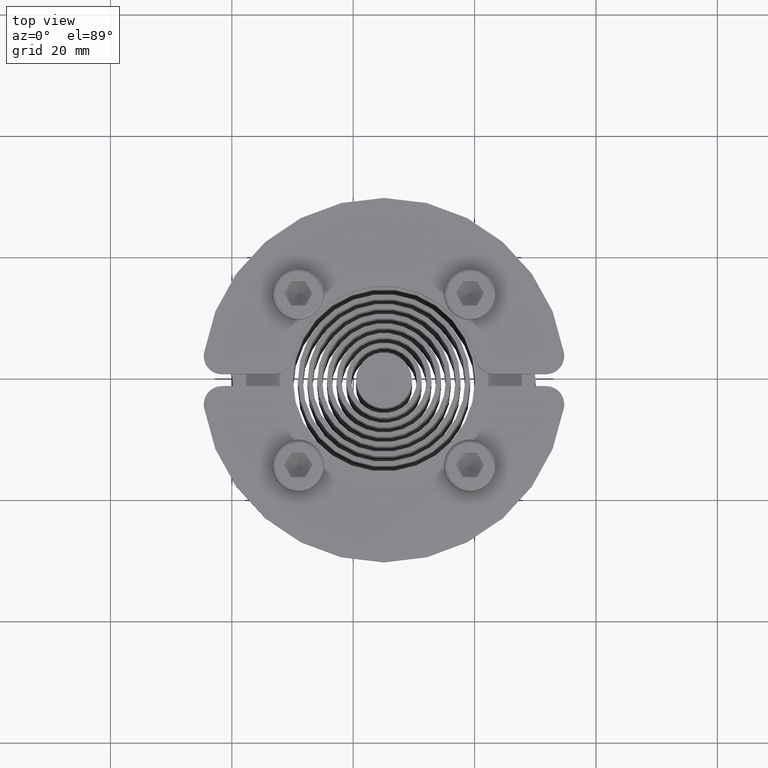
[diagram: clean part render]
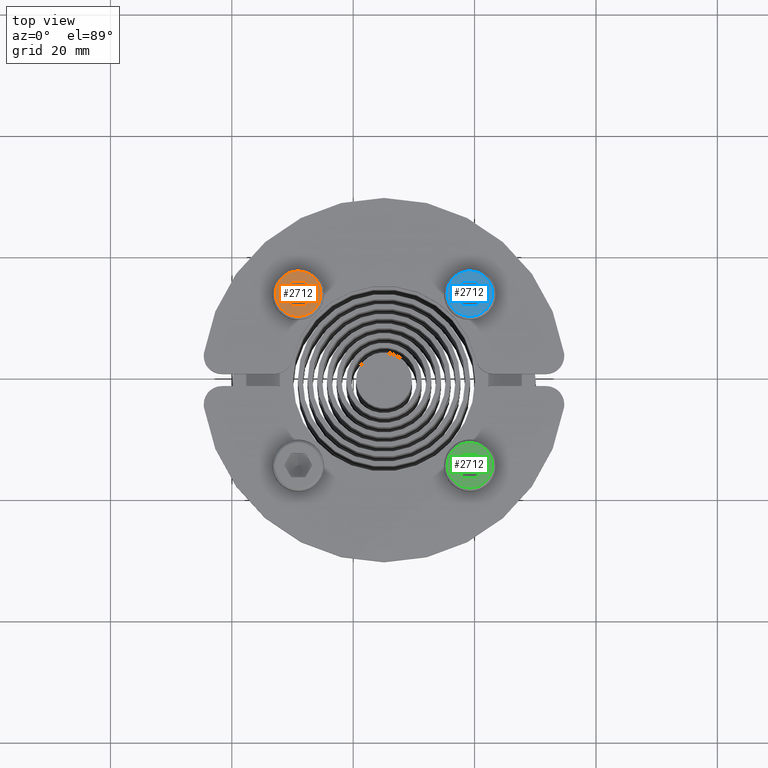
[diagram: same view with three faces highlighted in distinct colors, each labeled with its STEP entity id]
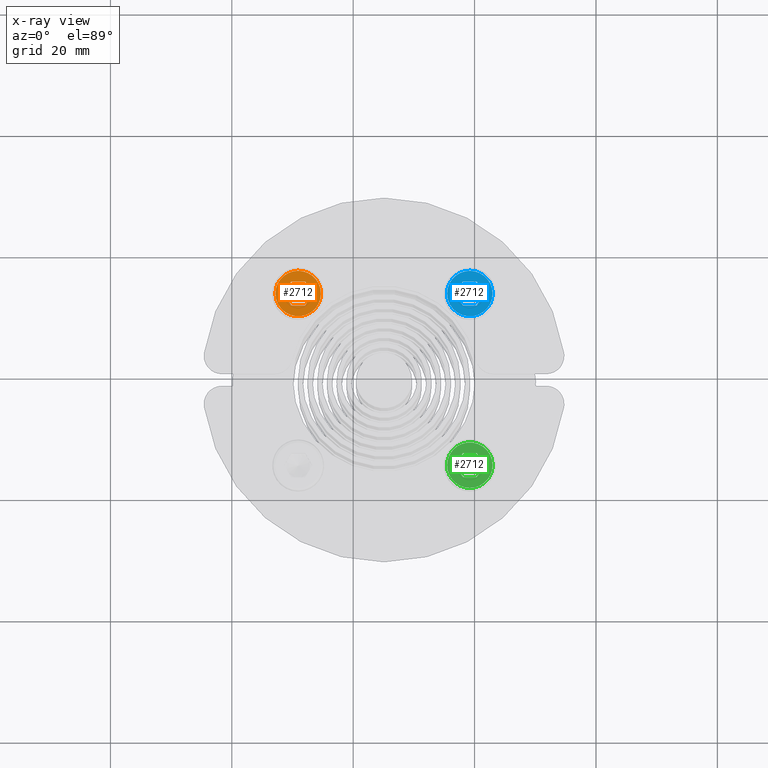
[diagram: x-ray of the same camera — body ghosted, the three highlighted faces saturated]
A machine part, top view with three faces highlighted in distinct colors.
The next image is the same camera in x-ray (body ghosted, the three faces saturated) — at least one of them is partly hidden behind the body in this view.
Their STEP definitions:

[orange] entity #2712 — the highlighted planar face has unit normal (-0, 0, 1).
#2288=CARTESIAN_POINT('',(-5.0,1.814889E-016,-3.750000000000313));
#2289=VERTEX_POINT('',#2288);
#2307=CARTESIAN_POINT('',(-5.0,-7.369658E-016,3.750000000000313));
#2308=VERTEX_POINT('',#2307);
#2316=CARTESIAN_POINT('',(-5.0,0.0,0.0));
#2317=DIRECTION('',(-1.0,0.0,0.0));
#2318=DIRECTION('',(0.0,0.0,1.0));
#2319=AXIS2_PLACEMENT_3D('',#2316,#2317,#2318);
#2320=CIRCLE('',#2319,3.750000000000313);
#2321=EDGE_CURVE('',#2289,#2308,#2320,.T.);
#2540=CARTESIAN_POINT('',(-4.999999999999943,2.0,1.155897919368272));
#2541=VERTEX_POINT('',#2540);
#2548=CARTESIAN_POINT('',(-4.999999999999943,2.0,-1.155897919368272));
#2549=VERTEX_POINT('',#2548);
#2550=CARTESIAN_POINT('',(-4.999999999999943,2.0,-1.155897919368272));
#2551=DIRECTION('',(0.0,0.0,1.0));
#2552=VECTOR('',#2551,2.311795838736543);
#2553=LINE('',#2550,#2552);
#2554=EDGE_CURVE('',#2549,#2541,#2553,.T.);
#2573=CARTESIAN_POINT('',(-5.0,0.0,-2.309999999999945));
#2574=VERTEX_POINT('',#2573);
#2575=CARTESIAN_POINT('',(-5.0,0.0,-2.309999999999945));
#2576=DIRECTION('',(2.461711E-014,0.866137607335942,0.499805607369875));
#2577=VECTOR('',#2576,2.309101906048834);
#2578=LINE('',#2575,#2577);
#2579=EDGE_CURVE('',#2574,#2549,#2578,.T.);
#2597=CARTESIAN_POINT('',(-4.999999999999942,-2.0,-1.155897919368272));
#2598=VERTEX_POINT('',#2597);
#2599=CARTESIAN_POINT('',(-4.999999999999942,-2.0,-1.155897919368272));
#2600=DIRECTION('',(-2.500175E-014,0.866137607335942,-0.499805607369875));
#2601=VECTOR('',#2600,2.309101906048834);
#2602=LINE('',#2599,#2601);
#2603=EDGE_CURVE('',#2598,#2574,#2602,.T.);
#2621=CARTESIAN_POINT('',(-4.999999999999942,-2.0,1.155897919368272));
#2622=VERTEX_POINT('',#2621);
#2623=CARTESIAN_POINT('',(-4.999999999999942,-2.0,1.155897919368272));
#2624=DIRECTION('',(0.0,0.0,-1.0));
#2625=VECTOR('',#2624,2.311795838736543);
#2626=LINE('',#2623,#2625);
#2627=EDGE_CURVE('',#2622,#2598,#2626,.T.);
#2646=CARTESIAN_POINT('',(-4.999999999999999,0.0,2.309999999999945));
#2647=VERTEX_POINT('',#2646);
#2648=CARTESIAN_POINT('',(-4.999999999999999,0.0,2.309999999999945));
#2649=DIRECTION('',(2.461711E-014,-0.866137607335942,-0.499805607369875));
#2650=VECTOR('',#2649,2.309101906048834);
#2651=LINE('',#2648,#2650);
#2652=EDGE_CURVE('',#2647,#2622,#2651,.T.);
#2670=CARTESIAN_POINT('',(-4.999999999999943,2.0,1.155897919368272));
#2671=DIRECTION('',(-2.423247E-014,-0.866137607335942,0.499805607369875));
#2672=VECTOR('',#2671,2.309101906048834);
#2673=LINE('',#2670,#2672);
#2674=EDGE_CURVE('',#2541,#2647,#2673,.T.);
#2680=CARTESIAN_POINT('',(-5.000000000000001,3.279999999999973,0.0));
#2681=DIRECTION('',(-1.0,0.0,0.0));
#2682=DIRECTION('',(0.0,0.0,1.0));
#2683=AXIS2_PLACEMENT_3D('',#2680,#2681,#2682);
#2684=PLANE('',#2683);
#2685=CARTESIAN_POINT('',(-5.000000000000086,3.750000000000227,0.0));
#2686=VERTEX_POINT('',#2685);
#2687=CARTESIAN_POINT('',(-5.0,0.0,0.0));
#2688=DIRECTION('',(-1.0,0.0,0.0));
#2689=DIRECTION('',(0.0,0.0,1.0));
#2690=AXIS2_PLACEMENT_3D('',#2687,#2688,#2689);
#2691=CIRCLE('',#2690,3.750000000000313);
#2692=EDGE_CURVE('',#2686,#2289,#2691,.T.);
#2693=ORIENTED_EDGE('',*,*,#2692,.T.);
#2694=ORIENTED_EDGE('',*,*,#2321,.T.);
#2695=CARTESIAN_POINT('',(-5.0,0.0,0.0));
#2696=DIRECTION('',(-1.0,0.0,0.0));
#2697=DIRECTION('',(0.0,0.0,1.0));
#2698=AXIS2_PLACEMENT_3D('',#2695,#2696,#2697);
#2699=CIRCLE('',#2698,3.750000000000313);
#2700=EDGE_CURVE('',#2308,#2686,#2699,.T.);
#2701=ORIENTED_EDGE('',*,*,#2700,.T.);
#2702=EDGE_LOOP('',(#2693,#2694,#2701));
#2703=FACE_OUTER_BOUND('',#2702,.T.);
#2704=ORIENTED_EDGE('',*,*,#2674,.T.);
#2705=ORIENTED_EDGE('',*,*,#2652,.T.);
#2706=ORIENTED_EDGE('',*,*,#2627,.T.);
#2707=ORIENTED_EDGE('',*,*,#2603,.T.);
#2708=ORIENTED_EDGE('',*,*,#2579,.T.);
#2709=ORIENTED_EDGE('',*,*,#2554,.T.);
#2710=EDGE_LOOP('',(#2704,#2705,#2706,#2707,#2708,#2709));
#2711=FACE_BOUND('',#2710,.T.);
#2712=ADVANCED_FACE('',(#2703,#2711),#2684,.T.);

[blue] entity #2712 — the highlighted planar face has unit normal (-0, 0, 1).
#2288=CARTESIAN_POINT('',(-5.0,1.814889E-016,-3.750000000000313));
#2289=VERTEX_POINT('',#2288);
#2307=CARTESIAN_POINT('',(-5.0,-7.369658E-016,3.750000000000313));
#2308=VERTEX_POINT('',#2307);
#2316=CARTESIAN_POINT('',(-5.0,0.0,0.0));
#2317=DIRECTION('',(-1.0,0.0,0.0));
#2318=DIRECTION('',(0.0,0.0,1.0));
#2319=AXIS2_PLACEMENT_3D('',#2316,#2317,#2318);
#2320=CIRCLE('',#2319,3.750000000000313);
#2321=EDGE_CURVE('',#2289,#2308,#2320,.T.);
#2540=CARTESIAN_POINT('',(-4.999999999999943,2.0,1.155897919368272));
#2541=VERTEX_POINT('',#2540);
#2548=CARTESIAN_POINT('',(-4.999999999999943,2.0,-1.155897919368272));
#2549=VERTEX_POINT('',#2548);
#2550=CARTESIAN_POINT('',(-4.999999999999943,2.0,-1.155897919368272));
#2551=DIRECTION('',(0.0,0.0,1.0));
#2552=VECTOR('',#2551,2.311795838736543);
#2553=LINE('',#2550,#2552);
#2554=EDGE_CURVE('',#2549,#2541,#2553,.T.);
#2573=CARTESIAN_POINT('',(-5.0,0.0,-2.309999999999945));
#2574=VERTEX_POINT('',#2573);
#2575=CARTESIAN_POINT('',(-5.0,0.0,-2.309999999999945));
#2576=DIRECTION('',(2.461711E-014,0.866137607335942,0.499805607369875));
#2577=VECTOR('',#2576,2.309101906048834);
#2578=LINE('',#2575,#2577);
#2579=EDGE_CURVE('',#2574,#2549,#2578,.T.);
#2597=CARTESIAN_POINT('',(-4.999999999999942,-2.0,-1.155897919368272));
#2598=VERTEX_POINT('',#2597);
#2599=CARTESIAN_POINT('',(-4.999999999999942,-2.0,-1.155897919368272));
#2600=DIRECTION('',(-2.500175E-014,0.866137607335942,-0.499805607369875));
#2601=VECTOR('',#2600,2.309101906048834);
#2602=LINE('',#2599,#2601);
#2603=EDGE_CURVE('',#2598,#2574,#2602,.T.);
#2621=CARTESIAN_POINT('',(-4.999999999999942,-2.0,1.155897919368272));
#2622=VERTEX_POINT('',#2621);
#2623=CARTESIAN_POINT('',(-4.999999999999942,-2.0,1.155897919368272));
#2624=DIRECTION('',(0.0,0.0,-1.0));
#2625=VECTOR('',#2624,2.311795838736543);
#2626=LINE('',#2623,#2625);
#2627=EDGE_CURVE('',#2622,#2598,#2626,.T.);
#2646=CARTESIAN_POINT('',(-4.999999999999999,0.0,2.309999999999945));
#2647=VERTEX_POINT('',#2646);
#2648=CARTESIAN_POINT('',(-4.999999999999999,0.0,2.309999999999945));
#2649=DIRECTION('',(2.461711E-014,-0.866137607335942,-0.499805607369875));
#2650=VECTOR('',#2649,2.309101906048834);
#2651=LINE('',#2648,#2650);
#2652=EDGE_CURVE('',#2647,#2622,#2651,.T.);
#2670=CARTESIAN_POINT('',(-4.999999999999943,2.0,1.155897919368272));
#2671=DIRECTION('',(-2.423247E-014,-0.866137607335942,0.499805607369875));
#2672=VECTOR('',#2671,2.309101906048834);
#2673=LINE('',#2670,#2672);
#2674=EDGE_CURVE('',#2541,#2647,#2673,.T.);
#2680=CARTESIAN_POINT('',(-5.000000000000001,3.279999999999973,0.0));
#2681=DIRECTION('',(-1.0,0.0,0.0));
#2682=DIRECTION('',(0.0,0.0,1.0));
#2683=AXIS2_PLACEMENT_3D('',#2680,#2681,#2682);
#2684=PLANE('',#2683);
#2685=CARTESIAN_POINT('',(-5.000000000000086,3.750000000000227,0.0));
#2686=VERTEX_POINT('',#2685);
#2687=CARTESIAN_POINT('',(-5.0,0.0,0.0));
#2688=DIRECTION('',(-1.0,0.0,0.0));
#2689=DIRECTION('',(0.0,0.0,1.0));
#2690=AXIS2_PLACEMENT_3D('',#2687,#2688,#2689);
#2691=CIRCLE('',#2690,3.750000000000313);
#2692=EDGE_CURVE('',#2686,#2289,#2691,.T.);
#2693=ORIENTED_EDGE('',*,*,#2692,.T.);
#2694=ORIENTED_EDGE('',*,*,#2321,.T.);
#2695=CARTESIAN_POINT('',(-5.0,0.0,0.0));
#2696=DIRECTION('',(-1.0,0.0,0.0));
#2697=DIRECTION('',(0.0,0.0,1.0));
#2698=AXIS2_PLACEMENT_3D('',#2695,#2696,#2697);
#2699=CIRCLE('',#2698,3.750000000000313);
#2700=EDGE_CURVE('',#2308,#2686,#2699,.T.);
#2701=ORIENTED_EDGE('',*,*,#2700,.T.);
#2702=EDGE_LOOP('',(#2693,#2694,#2701));
#2703=FACE_OUTER_BOUND('',#2702,.T.);
#2704=ORIENTED_EDGE('',*,*,#2674,.T.);
#2705=ORIENTED_EDGE('',*,*,#2652,.T.);
#2706=ORIENTED_EDGE('',*,*,#2627,.T.);
#2707=ORIENTED_EDGE('',*,*,#2603,.T.);
#2708=ORIENTED_EDGE('',*,*,#2579,.T.);
#2709=ORIENTED_EDGE('',*,*,#2554,.T.);
#2710=EDGE_LOOP('',(#2704,#2705,#2706,#2707,#2708,#2709));
#2711=FACE_BOUND('',#2710,.T.);
#2712=ADVANCED_FACE('',(#2703,#2711),#2684,.T.);

[green] entity #2712 — the highlighted planar face has unit normal (0, -0, 1).
#2288=CARTESIAN_POINT('',(-5.0,1.814889E-016,-3.750000000000313));
#2289=VERTEX_POINT('',#2288);
#2307=CARTESIAN_POINT('',(-5.0,-7.369658E-016,3.750000000000313));
#2308=VERTEX_POINT('',#2307);
#2316=CARTESIAN_POINT('',(-5.0,0.0,0.0));
#2317=DIRECTION('',(-1.0,0.0,0.0));
#2318=DIRECTION('',(0.0,0.0,1.0));
#2319=AXIS2_PLACEMENT_3D('',#2316,#2317,#2318);
#2320=CIRCLE('',#2319,3.750000000000313);
#2321=EDGE_CURVE('',#2289,#2308,#2320,.T.);
#2540=CARTESIAN_POINT('',(-4.999999999999943,2.0,1.155897919368272));
#2541=VERTEX_POINT('',#2540);
#2548=CARTESIAN_POINT('',(-4.999999999999943,2.0,-1.155897919368272));
#2549=VERTEX_POINT('',#2548);
#2550=CARTESIAN_POINT('',(-4.999999999999943,2.0,-1.155897919368272));
#2551=DIRECTION('',(0.0,0.0,1.0));
#2552=VECTOR('',#2551,2.311795838736543);
#2553=LINE('',#2550,#2552);
#2554=EDGE_CURVE('',#2549,#2541,#2553,.T.);
#2573=CARTESIAN_POINT('',(-5.0,0.0,-2.309999999999945));
#2574=VERTEX_POINT('',#2573);
#2575=CARTESIAN_POINT('',(-5.0,0.0,-2.309999999999945));
#2576=DIRECTION('',(2.461711E-014,0.866137607335942,0.499805607369875));
#2577=VECTOR('',#2576,2.309101906048834);
#2578=LINE('',#2575,#2577);
#2579=EDGE_CURVE('',#2574,#2549,#2578,.T.);
#2597=CARTESIAN_POINT('',(-4.999999999999942,-2.0,-1.155897919368272));
#2598=VERTEX_POINT('',#2597);
#2599=CARTESIAN_POINT('',(-4.999999999999942,-2.0,-1.155897919368272));
#2600=DIRECTION('',(-2.500175E-014,0.866137607335942,-0.499805607369875));
#2601=VECTOR('',#2600,2.309101906048834);
#2602=LINE('',#2599,#2601);
#2603=EDGE_CURVE('',#2598,#2574,#2602,.T.);
#2621=CARTESIAN_POINT('',(-4.999999999999942,-2.0,1.155897919368272));
#2622=VERTEX_POINT('',#2621);
#2623=CARTESIAN_POINT('',(-4.999999999999942,-2.0,1.155897919368272));
#2624=DIRECTION('',(0.0,0.0,-1.0));
#2625=VECTOR('',#2624,2.311795838736543);
#2626=LINE('',#2623,#2625);
#2627=EDGE_CURVE('',#2622,#2598,#2626,.T.);
#2646=CARTESIAN_POINT('',(-4.999999999999999,0.0,2.309999999999945));
#2647=VERTEX_POINT('',#2646);
#2648=CARTESIAN_POINT('',(-4.999999999999999,0.0,2.309999999999945));
#2649=DIRECTION('',(2.461711E-014,-0.866137607335942,-0.499805607369875));
#2650=VECTOR('',#2649,2.309101906048834);
#2651=LINE('',#2648,#2650);
#2652=EDGE_CURVE('',#2647,#2622,#2651,.T.);
#2670=CARTESIAN_POINT('',(-4.999999999999943,2.0,1.155897919368272));
#2671=DIRECTION('',(-2.423247E-014,-0.866137607335942,0.499805607369875));
#2672=VECTOR('',#2671,2.309101906048834);
#2673=LINE('',#2670,#2672);
#2674=EDGE_CURVE('',#2541,#2647,#2673,.T.);
#2680=CARTESIAN_POINT('',(-5.000000000000001,3.279999999999973,0.0));
#2681=DIRECTION('',(-1.0,0.0,0.0));
#2682=DIRECTION('',(0.0,0.0,1.0));
#2683=AXIS2_PLACEMENT_3D('',#2680,#2681,#2682);
#2684=PLANE('',#2683);
#2685=CARTESIAN_POINT('',(-5.000000000000086,3.750000000000227,0.0));
#2686=VERTEX_POINT('',#2685);
#2687=CARTESIAN_POINT('',(-5.0,0.0,0.0));
#2688=DIRECTION('',(-1.0,0.0,0.0));
#2689=DIRECTION('',(0.0,0.0,1.0));
#2690=AXIS2_PLACEMENT_3D('',#2687,#2688,#2689);
#2691=CIRCLE('',#2690,3.750000000000313);
#2692=EDGE_CURVE('',#2686,#2289,#2691,.T.);
#2693=ORIENTED_EDGE('',*,*,#2692,.T.);
#2694=ORIENTED_EDGE('',*,*,#2321,.T.);
#2695=CARTESIAN_POINT('',(-5.0,0.0,0.0));
#2696=DIRECTION('',(-1.0,0.0,0.0));
#2697=DIRECTION('',(0.0,0.0,1.0));
#2698=AXIS2_PLACEMENT_3D('',#2695,#2696,#2697);
#2699=CIRCLE('',#2698,3.750000000000313);
#2700=EDGE_CURVE('',#2308,#2686,#2699,.T.);
#2701=ORIENTED_EDGE('',*,*,#2700,.T.);
#2702=EDGE_LOOP('',(#2693,#2694,#2701));
#2703=FACE_OUTER_BOUND('',#2702,.T.);
#2704=ORIENTED_EDGE('',*,*,#2674,.T.);
#2705=ORIENTED_EDGE('',*,*,#2652,.T.);
#2706=ORIENTED_EDGE('',*,*,#2627,.T.);
#2707=ORIENTED_EDGE('',*,*,#2603,.T.);
#2708=ORIENTED_EDGE('',*,*,#2579,.T.);
#2709=ORIENTED_EDGE('',*,*,#2554,.T.);
#2710=EDGE_LOOP('',(#2704,#2705,#2706,#2707,#2708,#2709));
#2711=FACE_BOUND('',#2710,.T.);
#2712=ADVANCED_FACE('',(#2703,#2711),#2684,.T.);